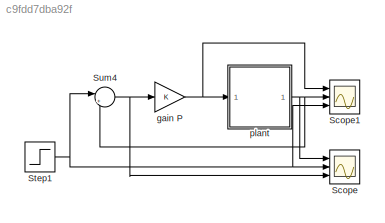
MODEL slx_c9fdd7dba92f
KIND model
CONFIG AbsTol = auto
CONFIG EnableMultiTasking = off
CONFIG FixedStep = auto
CONFIG MaxStep = auto
CONFIG MinStep = auto
CONFIG RelTol = 1e-3
CONFIG SampleTimeConstraint = Unconstrained
CONFIG SolverName = VariableStepAuto
CONFIG StartTime = 0.0
CONFIG StopTime = 50
BLOCK [Scope] Scope
  Floating = off
  NumInputPorts = 3
  Ports = [3]
  ScopeSpecificationString = Simulink.scopes.TimeScopeBlockCfg('CurrentConfiguration', extmgr.ConfigurationSet(extmgr.Configuration('Core','General UI',true),extmgr.Configuration('Core','Source UI',true),extmgr.Configuration('Sources','WiredSimulink',true,'DataLogging',true),extmgr.Configuration('Visuals','Time Domain',true,'SerializedDisplays',{struct('MinYLimReal','-2.32959','MaxYLimReal','5.8144','YLabelReal','','MinYLimMa...<+1404ch>
BLOCK [Scope] Scope1
  Floating = off
  NumInputPorts = 3
  Ports = [3]
  ScopeSpecificationString = Simulink.scopes.TimeScopeBlockCfg('CurrentConfiguration', extmgr.ConfigurationSet(extmgr.Configuration('Core','General UI',true),extmgr.Configuration('Core','Source UI',true),extmgr.Configuration('Sources','WiredSimulink',true,'DataLogging',true,'DataLoggingVariableName','ScopeData1'),extmgr.Configuration('Visuals','Time Domain',true,'SerializedDisplays',{struct('MinYLimReal','-2.32959','MaxYLimRe...<+1472ch>
BLOCK [Step] Step1
  After = 5
  SampleTime = 0
BLOCK [Sum] Sum4
  Inputs = |+-
  Ports = [2, 1]
BLOCK [Gain] gain P
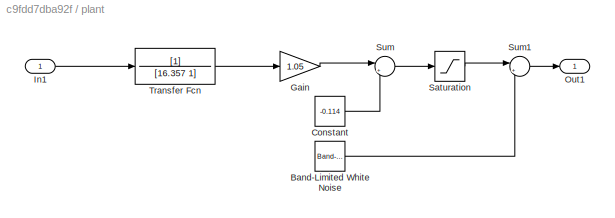
BLOCK [SubSystem] plant
  Ports = [1, 1]
  RequestExecContextInheritance = off
BLOCK [Reference] plant/Band-Limited White Noise  REF=simulink/Sources/Band-Limited
White Noise
  Ports = [0, 1]
  SourceBlock = simulink/Sources/Band-Limited\nWhite Noise
  SourceProductBaseCode = SL
  SourceType = Band-Limited White Noise.
BLOCK [Constant] plant/Constant
  Value = -0.114
BLOCK [Gain] plant/Gain
  Gain = 1.05
BLOCK [Inport] plant/In1
BLOCK [Outport] plant/Out1
BLOCK [Saturate] plant/Saturation
  LowerLimit = 1.206
  UpperLimit = 8.79
BLOCK [Sum] plant/Sum
  Inputs = |++
  Ports = [2, 1]
BLOCK [Sum] plant/Sum1
  Inputs = |++
  Ports = [2, 1]
BLOCK [TransferFcn] plant/Transfer Fcn
  Denominator = [16.357 1]
NET Step1:1 -> Scope1:3, Scope:2, Sum4:1
NET Sum4:1 -> Scope:3, gain P:1
NET gain P:1 -> Scope1:1, plant:1
LINE plant/Band-Limited White Noise:1 -> plant/Sum1:2
LINE plant/Constant:1 -> plant/Sum:2
LINE plant/Gain:1 -> plant/Sum:1
LINE plant/In1:1 -> plant/Transfer Fcn:1
LINE plant/Saturation:1 -> plant/Sum1:1
LINE plant/Sum1:1 -> plant/Out1:1
LINE plant/Sum:1 -> plant/Saturation:1
LINE plant/Transfer Fcn:1 -> plant/Gain:1
NET plant:1 -> Scope1:2, Scope:1, Sum4:2
note: NET lines group one-source signal fan-out (src -> all destinations, sorted); 1:1 wires keep LINE
